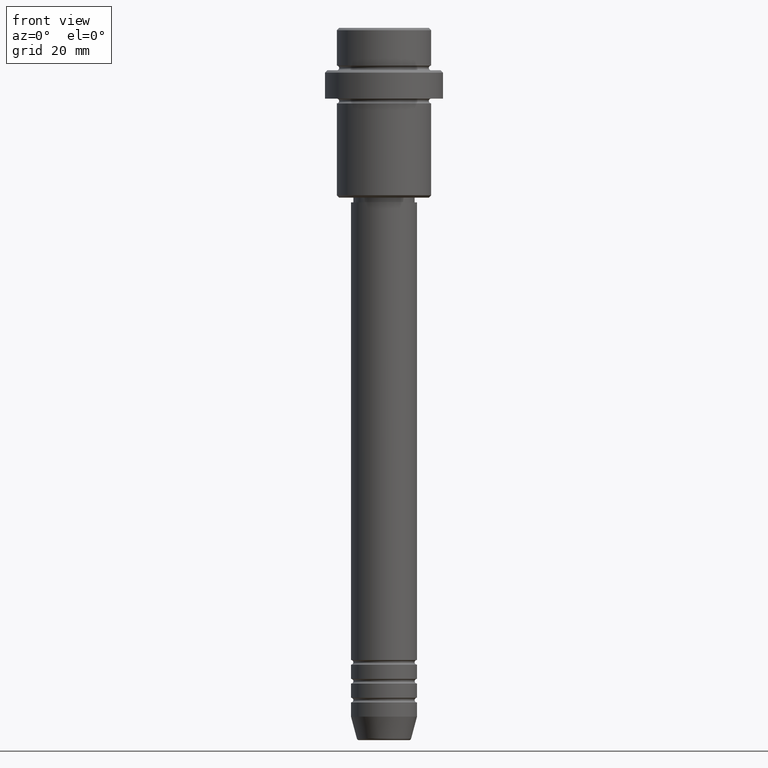
[diagram: clean part render]
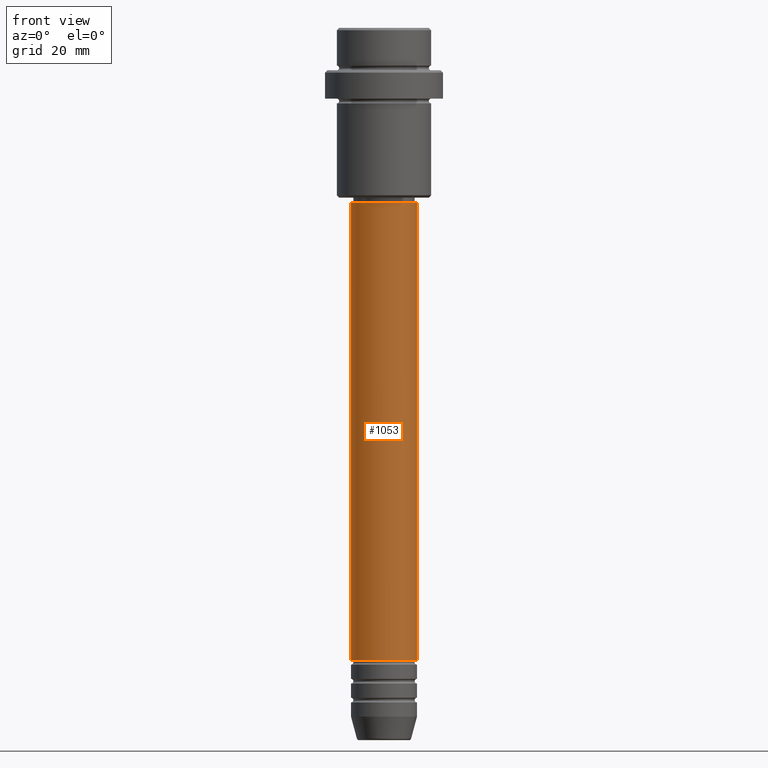
[diagram: same view with one face highlighted and labeled with its STEP entity id]
A machine part, front view. The second image highlights one B-rep face of the part: STEP entity #1053.
In plain terms, the highlighted cylindrical surface (edge-blend (fillet) strip) has radius 7 mm, axis along (-0, -0, 1).
Its self-contained STEP definition (entity closure, byte-faithful):
#31 = ORIENTED_EDGE ( 'NONE', *, *, #342, .F. ) ;
#47 = FACE_OUTER_BOUND ( 'NONE', #553, .T. ) ;
#96 = VERTEX_POINT ( 'NONE', #1120 ) ;
#161 = DIRECTION ( 'NONE',  ( 1.000000000000000000, 0.000000000000000000, 0.000000000000000000 ) ) ;
#205 = VERTEX_POINT ( 'NONE', #620 ) ;
#249 = CARTESIAN_POINT ( 'NONE',  ( 0.000000000000000000, 0.000000000000000000, 0.000000000000000000 ) ) ;
#323 = CARTESIAN_POINT ( 'NONE',  ( 7.000000000000000000, 0.000000000000000000, 0.000000000000000000 ) ) ;
#342 = EDGE_CURVE ( 'NONE', #1076, #205, #1228, .T. ) ;
#374 = EDGE_CURVE ( 'NONE', #96, #205, #432, .T. ) ;
#380 = DIRECTION ( 'NONE',  ( 1.000000000000000000, 0.000000000000000000, 0.000000000000000000 ) ) ;
#430 = ORIENTED_EDGE ( 'NONE', *, *, #374, .T. ) ;
#432 = LINE ( 'NONE', #323, #1315 ) ;
#469 = CARTESIAN_POINT ( 'NONE',  ( 0.000000000000000000, 0.000000000000000000, -37.00000000000000000 ) ) ;
#523 = LINE ( 'NONE', #867, #1273 ) ;
#553 = EDGE_LOOP ( 'NONE', ( #1015, #555, #430, #31 ) ) ;
#555 = ORIENTED_EDGE ( 'NONE', *, *, #960, .T. ) ;
#620 = CARTESIAN_POINT ( 'NONE',  ( 7.000000000000000000, 0.000000000000000000, -37.00000000000000000 ) ) ;
#668 = AXIS2_PLACEMENT_3D ( 'NONE', #469, #900, #1336 ) ;
#786 = CARTESIAN_POINT ( 'NONE',  ( -7.000000000000000000, 8.572527594031473190E-16, -133.9999999999998579 ) ) ;
#800 = CARTESIAN_POINT ( 'NONE',  ( 0.000000000000000000, 0.000000000000000000, -133.9999999999998579 ) ) ;
#867 = CARTESIAN_POINT ( 'NONE',  ( -7.000000000000000000, 8.572527594031473190E-16, 0.000000000000000000 ) ) ;
#900 = DIRECTION ( 'NONE',  ( -0.000000000000000000, -0.000000000000000000, 1.000000000000000000 ) ) ;
#960 = EDGE_CURVE ( 'NONE', #1260, #96, #1365, .T. ) ;
#971 = DIRECTION ( 'NONE',  ( -0.000000000000000000, -0.000000000000000000, 1.000000000000000000 ) ) ;
#1015 = ORIENTED_EDGE ( 'NONE', *, *, #1172, .F. ) ;
#1053 = ADVANCED_FACE ( 'NONE', ( #47 ), #1154, .T. ) ;
#1076 = VERTEX_POINT ( 'NONE', #1197 ) ;
#1120 = CARTESIAN_POINT ( 'NONE',  ( 7.000000000000000000, 0.000000000000000000, -133.9999999999998579 ) ) ;
#1129 = DIRECTION ( 'NONE',  ( -0.000000000000000000, -0.000000000000000000, 1.000000000000000000 ) ) ;
#1154 = CYLINDRICAL_SURFACE ( 'NONE', #1318, 7.000000000000000000 ) ;
#1172 = EDGE_CURVE ( 'NONE', #1260, #1076, #523, .T. ) ;
#1197 = CARTESIAN_POINT ( 'NONE',  ( -7.000000000000000000, 8.572527594031473190E-16, -37.00000000000000000 ) ) ;
#1228 = CIRCLE ( 'NONE', #668, 7.000000000000000000 ) ;
#1253 = AXIS2_PLACEMENT_3D ( 'NONE', #800, #1367, #380 ) ;
#1260 = VERTEX_POINT ( 'NONE', #786 ) ;
#1271 = DIRECTION ( 'NONE',  ( -0.000000000000000000, -0.000000000000000000, 1.000000000000000000 ) ) ;
#1273 = VECTOR ( 'NONE', #1271, 1000.000000000000000 ) ;
#1315 = VECTOR ( 'NONE', #971, 1000.000000000000000 ) ;
#1318 = AXIS2_PLACEMENT_3D ( 'NONE', #249, #1129, #161 ) ;
#1336 = DIRECTION ( 'NONE',  ( 1.000000000000000000, 0.000000000000000000, 0.000000000000000000 ) ) ;
#1365 = CIRCLE ( 'NONE', #1253, 7.000000000000000000 ) ;
#1367 = DIRECTION ( 'NONE',  ( -0.000000000000000000, -0.000000000000000000, 1.000000000000000000 ) ) ;